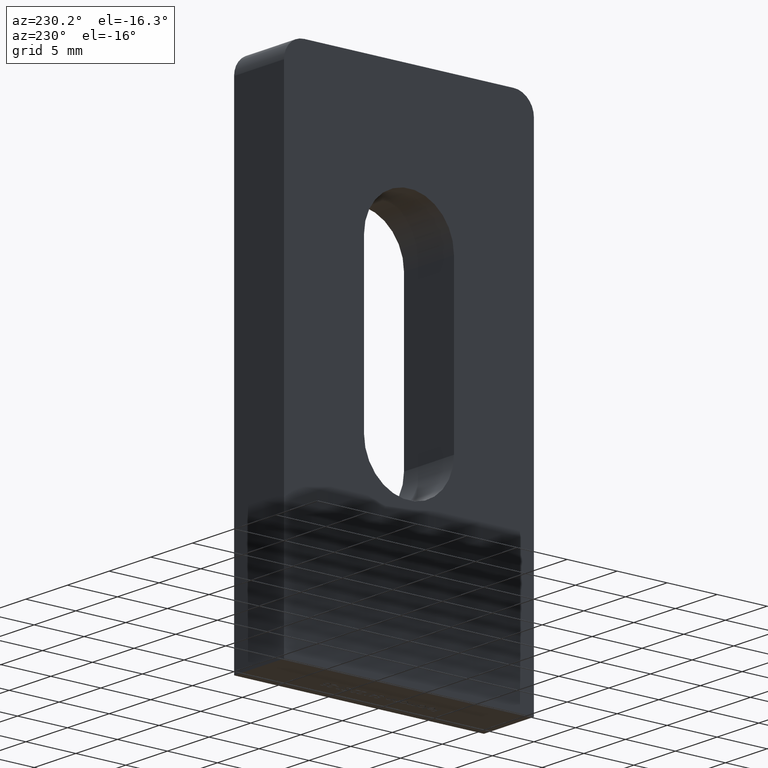
[diagram: clean part render]
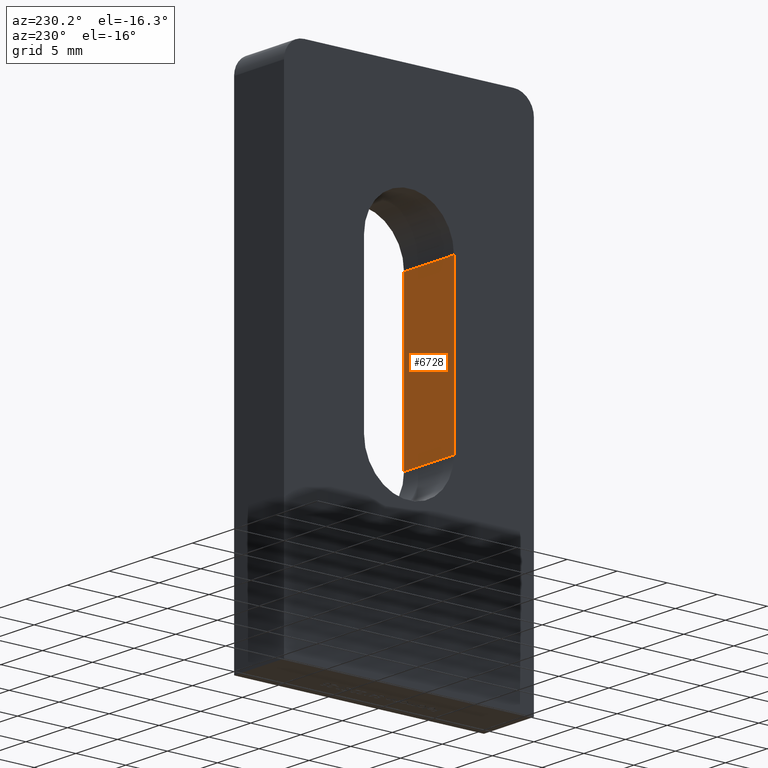
[diagram: same view with one face highlighted and labeled with its STEP entity id]
A machine part, auxiliary view. The second image highlights one B-rep face of the part: STEP entity #6728.
In plain terms, the highlighted planar face has unit normal (0, -1, 0).
Its self-contained STEP definition (entity closure, byte-faithful):
#40 = EDGE_CURVE ( 'NONE', #6210, #10986, #12554, .T. ) ;
#184 = CARTESIAN_POINT ( 'NONE',  ( -3.000000000000000000, -4.499999999999999112, 35.50000000000000711 ) ) ;
#561 = FACE_OUTER_BOUND ( 'NONE', #4950, .T. ) ;
#655 = CARTESIAN_POINT ( 'NONE',  ( 3.000000000000000000, -4.499999999999999112, 35.50000000000000711 ) ) ;
#746 = ORIENTED_EDGE ( 'NONE', *, *, #5253, .T. ) ;
#930 = VERTEX_POINT ( 'NONE', #5452 ) ;
#2084 = DIRECTION ( 'NONE',  ( 0.000000000000000000, -1.000000000000000000, 5.421010862427517240E-17 ) ) ;
#2170 = ORIENTED_EDGE ( 'NONE', *, *, #11391, .F. ) ;
#3098 = AXIS2_PLACEMENT_3D ( 'NONE', #184, #2084, #8072 ) ;
#4096 = CARTESIAN_POINT ( 'NONE',  ( -3.000000000000000000, -4.499999999999999112, 35.50000000000000711 ) ) ;
#4148 = CARTESIAN_POINT ( 'NONE',  ( -3.000000000000000000, -4.499999999999999112, 35.50000000000000711 ) ) ;
#4152 = CARTESIAN_POINT ( 'NONE',  ( -3.000000000000000000, -4.500000000000000000, 19.49999999999998934 ) ) ;
#4498 = VECTOR ( 'NONE', #9511, 1000.000000000000000 ) ;
#4739 = VECTOR ( 'NONE', #11978, 1000.000000000000000 ) ;
#4926 = LINE ( 'NONE', #655, #9584 ) ;
#4950 = EDGE_LOOP ( 'NONE', ( #746, #9110, #2170, #10714 ) ) ;
#5198 = LINE ( 'NONE', #4152, #4739 ) ;
#5253 = EDGE_CURVE ( 'NONE', #10986, #930, #4926, .T. ) ;
#5452 = CARTESIAN_POINT ( 'NONE',  ( 3.000000000000000000, -4.500000000000000000, 19.49999999999998934 ) ) ;
#6210 = VERTEX_POINT ( 'NONE', #4096 ) ;
#6560 = DIRECTION ( 'NONE',  ( 0.000000000000000000, -5.421010862427517240E-17, -1.000000000000000000 ) ) ;
#6630 = VECTOR ( 'NONE', #10944, 1000.000000000000000 ) ;
#6728 = ADVANCED_FACE ( 'NONE', ( #561 ), #10977, .F. ) ;
#7169 = EDGE_CURVE ( 'NONE', #10122, #930, #5198, .T. ) ;
#7512 = CARTESIAN_POINT ( 'NONE',  ( -3.000000000000000000, -4.499999999999999112, 35.50000000000000711 ) ) ;
#8072 = DIRECTION ( 'NONE',  ( 0.000000000000000000, -5.421010862427517240E-17, -1.000000000000000000 ) ) ;
#8167 = LINE ( 'NONE', #4148, #6630 ) ;
#8990 = CARTESIAN_POINT ( 'NONE',  ( -3.000000000000000000, -4.500000000000000000, 19.49999999999998934 ) ) ;
#9110 = ORIENTED_EDGE ( 'NONE', *, *, #7169, .F. ) ;
#9440 = CARTESIAN_POINT ( 'NONE',  ( 3.000000000000000000, -4.499999999999999112, 35.50000000000000711 ) ) ;
#9511 = DIRECTION ( 'NONE',  ( 1.000000000000000000, -0.000000000000000000, -0.000000000000000000 ) ) ;
#9584 = VECTOR ( 'NONE', #6560, 1000.000000000000000 ) ;
#10122 = VERTEX_POINT ( 'NONE', #8990 ) ;
#10714 = ORIENTED_EDGE ( 'NONE', *, *, #40, .T. ) ;
#10944 = DIRECTION ( 'NONE',  ( 0.000000000000000000, -5.421010862427517240E-17, -1.000000000000000000 ) ) ;
#10977 = PLANE ( 'NONE',  #3098 ) ;
#10986 = VERTEX_POINT ( 'NONE', #9440 ) ;
#11391 = EDGE_CURVE ( 'NONE', #6210, #10122, #8167, .T. ) ;
#11978 = DIRECTION ( 'NONE',  ( 1.000000000000000000, -0.000000000000000000, -0.000000000000000000 ) ) ;
#12554 = LINE ( 'NONE', #7512, #4498 ) ;